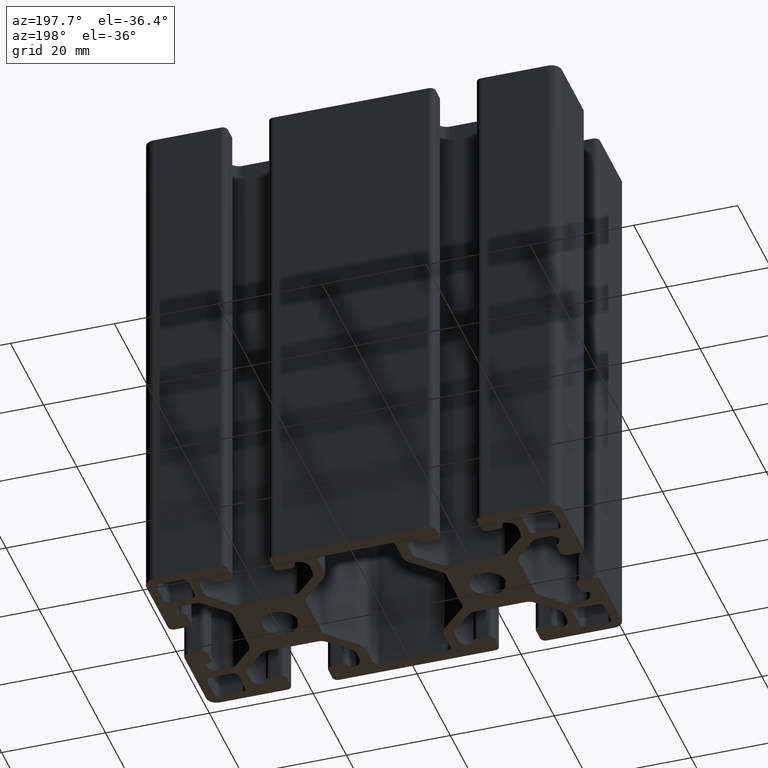
[diagram: clean part render]
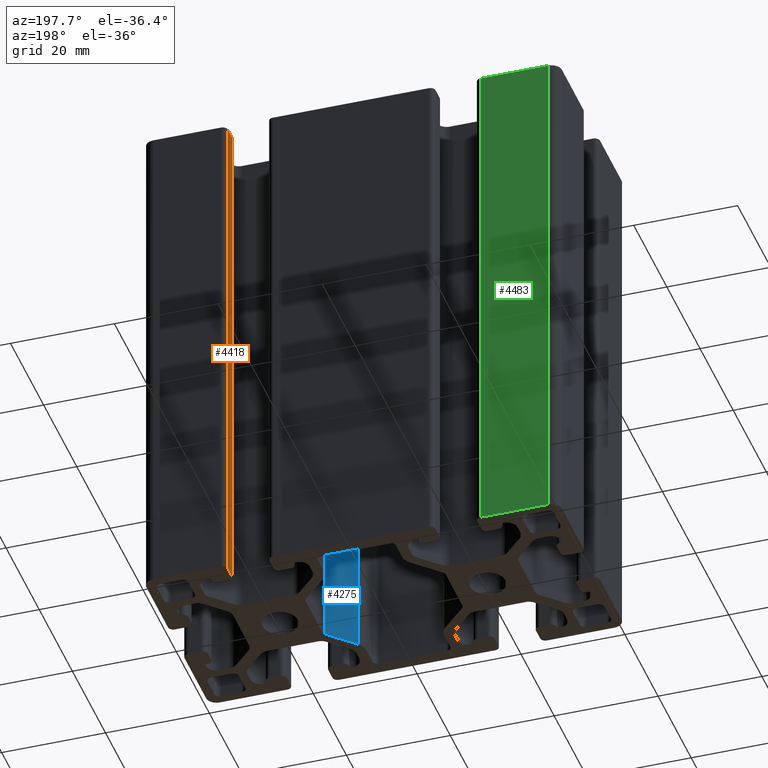
[diagram: same view with three faces highlighted in distinct colors, each labeled with its STEP entity id]
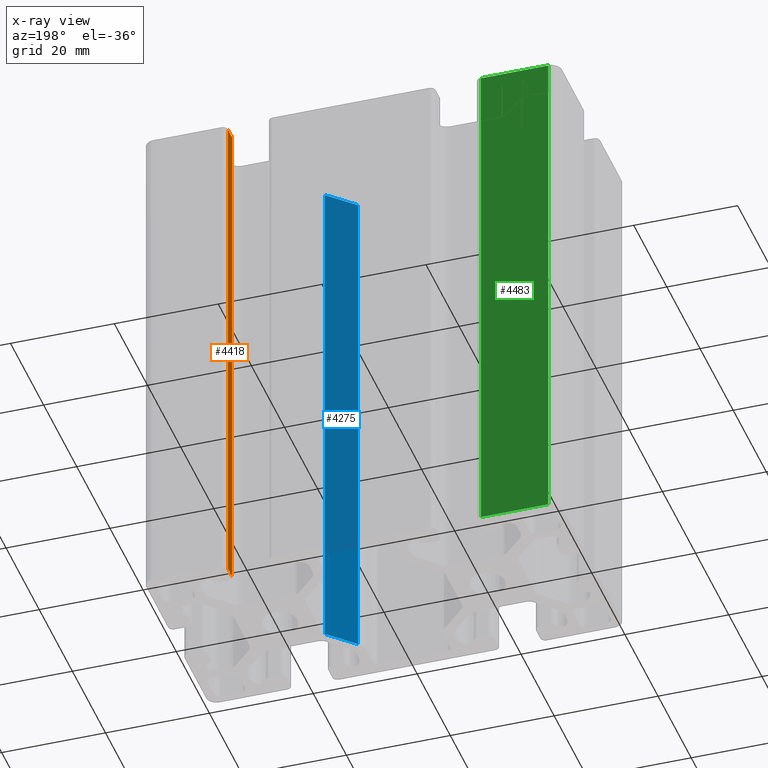
[diagram: x-ray of the same camera — body ghosted, the three highlighted faces saturated]
A machine part, auxiliary view with three faces highlighted in distinct colors.
The next image is the same camera in x-ray (body ghosted, the three faces saturated) — at least one of them is partly hidden behind the body in this view.
Their STEP definitions:

[orange] entity #4418 — the highlighted planar face has unit normal (1, 0, 0).
#89=PLANE('',#4790);
#431=LINE('',#7157,#883);
#432=LINE('',#7160,#884);
#433=LINE('',#7162,#885);
#434=LINE('',#7163,#886);
#883=VECTOR('',#5819,100.);
#884=VECTOR('',#5822,2.50000399189768);
#885=VECTOR('',#5823,2.50000399189768);
#886=VECTOR('',#5824,100.);
#1200=FACE_OUTER_BOUND('',#1426,.T.);
#1426=EDGE_LOOP('',(#3421,#3422,#3423,#3424));
#2032=VERTEX_POINT('',#7151);
#2034=VERTEX_POINT('',#7155);
#2035=VERTEX_POINT('',#7159);
#2036=VERTEX_POINT('',#7161);
#2617=EDGE_CURVE('',#2034,#2032,#431,.T.);
#2618=EDGE_CURVE('',#2032,#2035,#432,.T.);
#2619=EDGE_CURVE('',#2036,#2034,#433,.T.);
#2620=EDGE_CURVE('',#2036,#2035,#434,.T.);
#3421=ORIENTED_EDGE('',*,*,#2618,.F.);
#3422=ORIENTED_EDGE('',*,*,#2617,.F.);
#3423=ORIENTED_EDGE('',*,*,#2619,.F.);
#3424=ORIENTED_EDGE('',*,*,#2620,.T.);
#4418=ADVANCED_FACE('',(#1200),#89,.F.);
#4790=AXIS2_PLACEMENT_3D('',#7158,#5820,#5821);
#5819=DIRECTION('',(0.,0.,1.));
#5820=DIRECTION('center_axis',(1.,0.,0.));
#5821=DIRECTION('ref_axis',(0.,1.,0.));
#5822=DIRECTION('',(0.,-1.,0.));
#5823=DIRECTION('',(0.,1.,0.));
#5824=DIRECTION('',(0.,0.,1.));
#7151=CARTESIAN_POINT('',(24.,19.0000019959488,100.));
#7155=CARTESIAN_POINT('',(24.,19.0000019959488,0.));
#7157=CARTESIAN_POINT('',(24.,19.0000019959488,0.));
#7158=CARTESIAN_POINT('Origin',(24.,16.4999980040511,0.));
#7159=CARTESIAN_POINT('',(24.,16.4999980040511,100.));
#7160=CARTESIAN_POINT('',(24.,8.24999900202557,100.));
#7161=CARTESIAN_POINT('',(24.,16.4999980040511,0.));
#7162=CARTESIAN_POINT('',(24.,8.24999900202557,0.));
#7163=CARTESIAN_POINT('',(24.,16.4999980040511,0.));

[blue] entity #4275 — the highlighted planar face has unit normal (0.7071, -0.7071, 0).
#16=PLANE('',#4507);
#138=LINE('',#6285,#590);
#139=LINE('',#6288,#591);
#140=LINE('',#6290,#592);
#141=LINE('',#6291,#593);
#590=VECTOR('',#4960,100.);
#591=VECTOR('',#4963,6.8284271247462);
#592=VECTOR('',#4964,6.8284271247462);
#593=VECTOR('',#4965,100.);
#1057=FACE_OUTER_BOUND('',#1282,.T.);
#1282=EDGE_LOOP('',(#2851,#2852,#2853,#2854));
#1737=VERTEX_POINT('',#6281);
#1738=VERTEX_POINT('',#6283);
#1739=VERTEX_POINT('',#6287);
#1740=VERTEX_POINT('',#6289);
#2184=EDGE_CURVE('',#1738,#1737,#138,.T.);
#2185=EDGE_CURVE('',#1737,#1739,#139,.T.);
#2186=EDGE_CURVE('',#1740,#1738,#140,.T.);
#2187=EDGE_CURVE('',#1740,#1739,#141,.T.);
#2851=ORIENTED_EDGE('',*,*,#2185,.F.);
#2852=ORIENTED_EDGE('',*,*,#2184,.F.);
#2853=ORIENTED_EDGE('',*,*,#2186,.F.);
#2854=ORIENTED_EDGE('',*,*,#2187,.T.);
#4275=ADVANCED_FACE('',(#1057),#16,.F.);
#4507=AXIS2_PLACEMENT_3D('',#6286,#4961,#4962);
#4960=DIRECTION('',(0.,0.,1.));
#4961=DIRECTION('center_axis',(0.707106781186548,-0.707106781186547,0.));
#4962=DIRECTION('ref_axis',(0.707106781186547,0.707106781186548,0.));
#4963=DIRECTION('',(-0.707106781186547,-0.707106781186548,0.));
#4964=DIRECTION('',(0.707106781186547,0.707106781186548,0.));
#4965=DIRECTION('',(0.,0.,1.));
#6281=CARTESIAN_POINT('',(13.2071067811865,-5.7322330470336,100.));
#6283=CARTESIAN_POINT('',(13.2071067811865,-5.7322330470336,0.));
#6285=CARTESIAN_POINT('',(13.2071067811865,-5.7322330470336,0.));
#6286=CARTESIAN_POINT('Origin',(8.37867965644035,-10.5606601717798,0.));
#6287=CARTESIAN_POINT('',(8.37867965644035,-10.5606601717798,100.));
#6288=CARTESIAN_POINT('',(8.92417478527522,-10.0151650429449,100.));
#6289=CARTESIAN_POINT('',(8.37867965644035,-10.5606601717798,0.));
#6290=CARTESIAN_POINT('',(8.92417478527522,-10.0151650429449,0.));
#6291=CARTESIAN_POINT('',(8.37867965644035,-10.5606601717798,0.));

[green] entity #4483 — the highlighted planar face has unit normal (-0, 1, 0).
#125=PLANE('',#4913);
#333=LINE('',#6866,#785);
#569=LINE('',#7550,#1021);
#570=LINE('',#7552,#1022);
#571=LINE('',#7553,#1023);
#785=VECTOR('',#5535,100.);
#1021=VECTOR('',#6205,13.0000019959488);
#1022=VECTOR('',#6206,100.);
#1023=VECTOR('',#6207,13.0000019959488);
#1265=FACE_OUTER_BOUND('',#1491,.T.);
#1491=EDGE_LOOP('',(#3681,#3682,#3683,#3684));
#1933=VERTEX_POINT('',#6862);
#1934=VERTEX_POINT('',#6864);
#2165=VERTEX_POINT('',#7549);
#2166=VERTEX_POINT('',#7551);
#2473=EDGE_CURVE('',#1933,#1934,#333,.T.);
#2813=EDGE_CURVE('',#2165,#1934,#569,.T.);
#2814=EDGE_CURVE('',#2165,#2166,#570,.T.);
#2815=EDGE_CURVE('',#2166,#1933,#571,.T.);
#3681=ORIENTED_EDGE('',*,*,#2473,.T.);
#3682=ORIENTED_EDGE('',*,*,#2813,.F.);
#3683=ORIENTED_EDGE('',*,*,#2814,.T.);
#3684=ORIENTED_EDGE('',*,*,#2815,.T.);
#4483=ADVANCED_FACE('',(#1265),#125,.T.);
#4913=AXIS2_PLACEMENT_3D('',#7548,#6203,#6204);
#5535=DIRECTION('',(0.,0.,-1.));
#6203=DIRECTION('center_axis',(-1.1686558153949E-16,1.,0.));
#6204=DIRECTION('ref_axis',(-1.,0.,0.));
#6205=DIRECTION('',(1.,1.1686558153949E-16,0.));
#6206=DIRECTION('',(0.,0.,1.));
#6207=DIRECTION('',(1.,1.1686558153949E-16,0.));
#6862=CARTESIAN_POINT('',(-24.9999980040512,20.,100.));
#6864=CARTESIAN_POINT('',(-24.9999980040512,20.,0.));
#6866=CARTESIAN_POINT('',(-24.9999980040512,20.,0.));
#7548=CARTESIAN_POINT('Origin',(38.,20.,0.));
#7549=CARTESIAN_POINT('',(-38.,20.,0.));
#7550=CARTESIAN_POINT('',(19.,20.,0.));
#7551=CARTESIAN_POINT('',(-38.,20.,100.));
#7552=CARTESIAN_POINT('',(-38.,20.,0.));
#7553=CARTESIAN_POINT('',(19.,20.,100.));